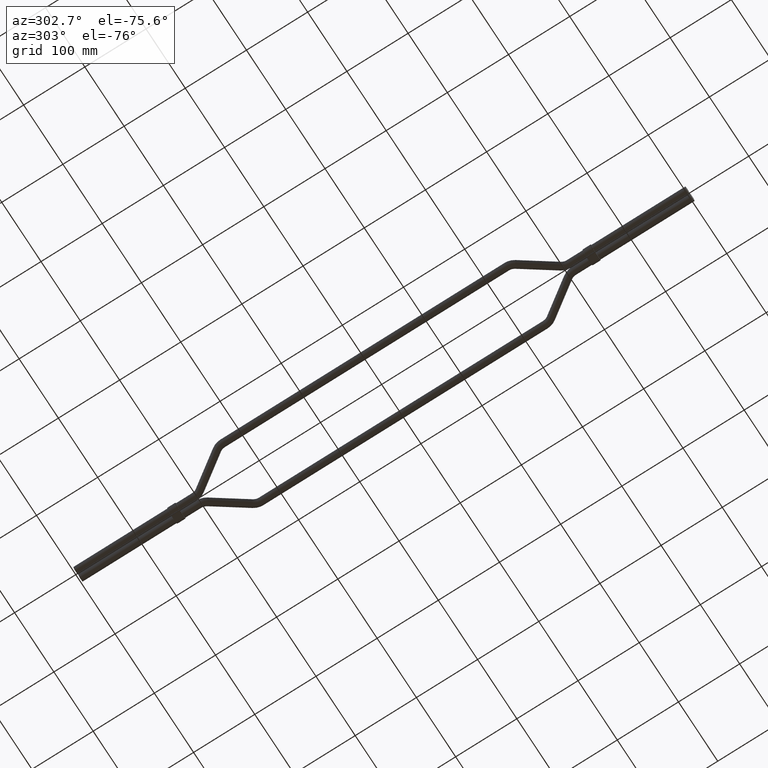
[diagram: clean part render]
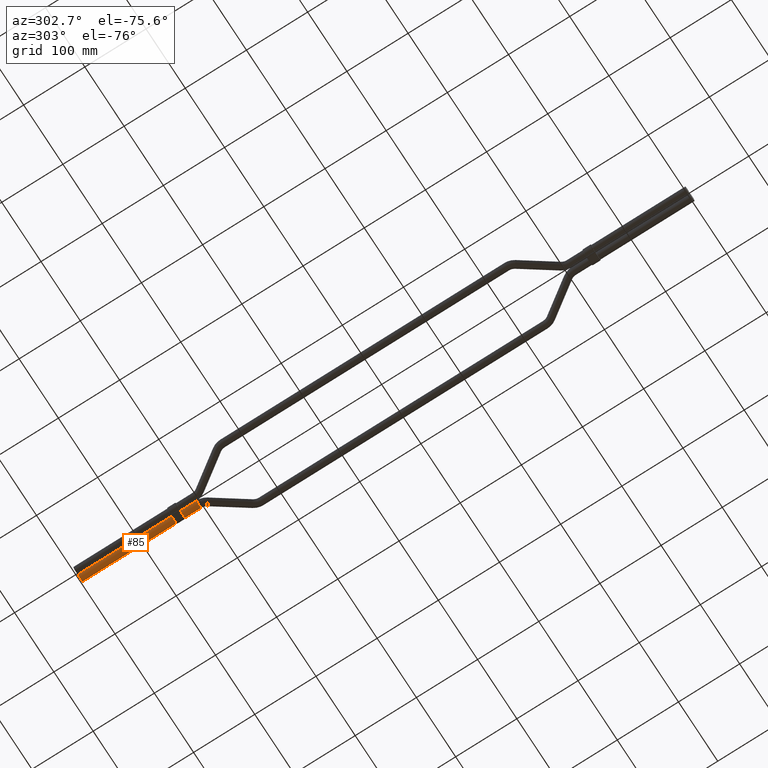
[diagram: same view with one face highlighted and labeled with its STEP entity id]
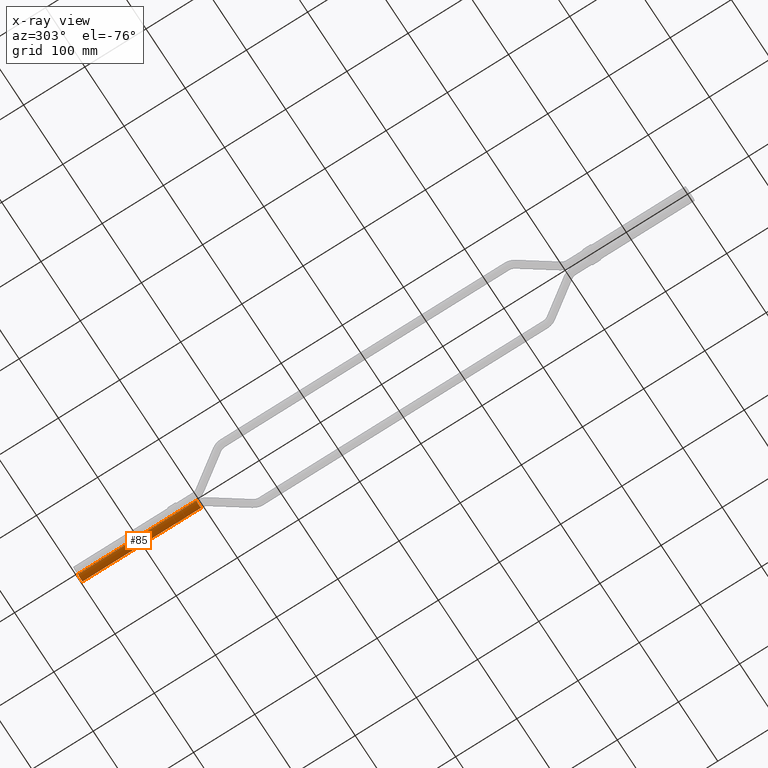
[diagram: x-ray of the same camera — body ghosted, the highlighted face saturated]
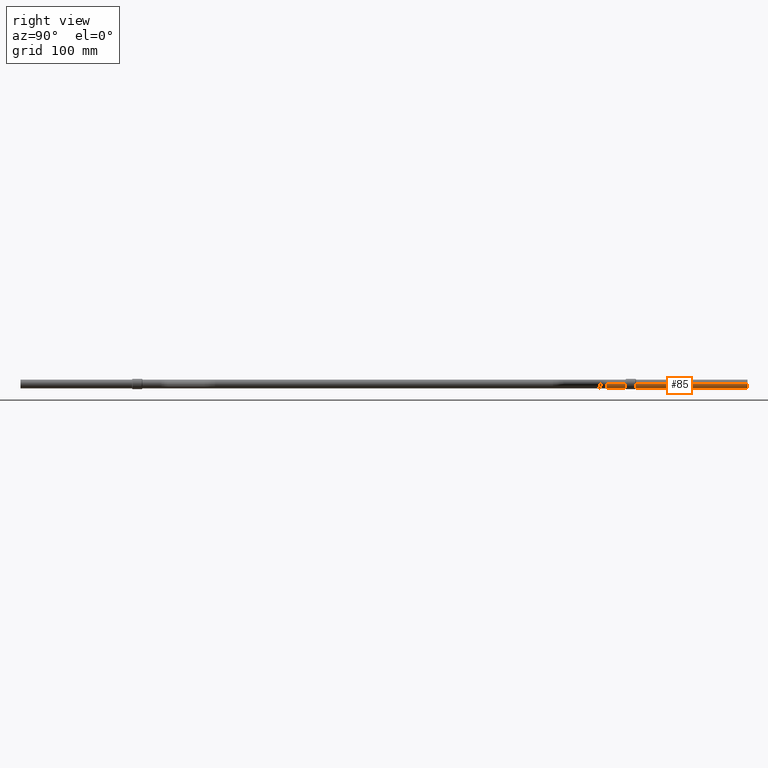
[diagram: same view with one face highlighted and labeled with its STEP entity id]
A machine part, auxiliary view. The second image highlights one B-rep face of the part: STEP entity #85.
The next image is the same camera in x-ray: the body ghosted, the highlighted face saturated — about 0% of this face is hidden behind the body in this view.
A second angle (right view) of the same face is appended — the face is thin or edge-on in the first view.
In plain terms, the highlighted cylindrical surface (edge-blend (fillet) strip) has radius 6 mm, axis along (-0, 1, 0).
Its self-contained STEP definition (entity closure, byte-faithful):
#85 = ADVANCED_FACE ( 'NONE', ( #422 ), #1677, .T. ) ;
#165 = VERTEX_POINT ( 'NONE', #3075 ) ;
#422 = FACE_OUTER_BOUND ( 'NONE', #1242, .T. ) ;
#423 = LINE ( 'NONE', #3882, #5716 ) ;
#1038 = VERTEX_POINT ( 'NONE', #1237 ) ;
#1237 = CARTESIAN_POINT ( 'NONE',  ( 18.00000000000002800, 1000.000000000000000, 7.347880794884123700E-016 ) ) ;
#1242 = EDGE_LOOP ( 'NONE', ( #7325, #7291, #2412, #6785 ) ) ;
#1526 = CARTESIAN_POINT ( 'NONE',  ( 6.000000000000024900, 1000.000000000000000, 0.0000000000000000000 ) ) ;
#1677 = CYLINDRICAL_SURFACE ( 'NONE', #5509, 6.000000000000002700 ) ;
#2101 = VERTEX_POINT ( 'NONE', #1526 ) ;
#2301 = AXIS2_PLACEMENT_3D ( 'NONE', #2306, #6493, #2932 ) ;
#2306 = CARTESIAN_POINT ( 'NONE',  ( 12.00000000000002800, 1000.000000000000000, 0.0000000000000000000 ) ) ;
#2412 = ORIENTED_EDGE ( 'NONE', *, *, #5067, .T. ) ;
#2457 = CARTESIAN_POINT ( 'NONE',  ( 18.00000000000007100, 806.3059757799999300, 7.347880794884145400E-016 ) ) ;
#2586 = DIRECTION ( 'NONE',  ( -4.218847493575594900E-015, 1.000000000000000000, 0.0000000000000000000 ) ) ;
#2671 = CIRCLE ( 'NONE', #6915, 6.000000000000002700 ) ;
#2932 = DIRECTION ( 'NONE',  ( 0.0000000000000000000, 0.0000000000000000000, 1.000000000000000000 ) ) ;
#3075 = CARTESIAN_POINT ( 'NONE',  ( 6.000000000000063100, 806.3059757799999300, 0.0000000000000000000 ) ) ;
#3084 = CIRCLE ( 'NONE', #2301, 6.000000000000002700 ) ;
#3175 = VECTOR ( 'NONE', #4329, 1000.000000000000000 ) ;
#3700 = EDGE_CURVE ( 'NONE', #7135, #165, #2671, .T. ) ;
#3882 = CARTESIAN_POINT ( 'NONE',  ( 6.000000000000063100, 806.3059757799999300, 0.0000000000000000000 ) ) ;
#4329 = DIRECTION ( 'NONE',  ( -1.970319767229510100E-016, 1.000000000000000000, 0.0000000000000000000 ) ) ;
#4525 = DIRECTION ( 'NONE',  ( -1.970319767229510100E-016, 1.000000000000000000, 0.0000000000000000000 ) ) ;
#4819 = LINE ( 'NONE', #7166, #3175 ) ;
#5067 = EDGE_CURVE ( 'NONE', #165, #2101, #423, .T. ) ;
#5410 = DIRECTION ( 'NONE',  ( -1.970319767229510100E-016, 1.000000000000000000, 0.0000000000000000000 ) ) ;
#5481 = CARTESIAN_POINT ( 'NONE',  ( 12.00000000000006600, 806.3059757799999300, 0.0000000000000000000 ) ) ;
#5507 = DIRECTION ( 'NONE',  ( -1.000000000000000000, 0.0000000000000000000, 0.0000000000000000000 ) ) ;
#5509 = AXIS2_PLACEMENT_3D ( 'NONE', #5481, #5410, #5507 ) ;
#5716 = VECTOR ( 'NONE', #4525, 1000.000000000000000 ) ;
#6205 = CARTESIAN_POINT ( 'NONE',  ( 12.00000000000006600, 806.3059757799999300, 0.0000000000000000000 ) ) ;
#6493 = DIRECTION ( 'NONE',  ( -4.218847493575594900E-015, 1.000000000000000000, 0.0000000000000000000 ) ) ;
#6726 = DIRECTION ( 'NONE',  ( 0.0000000000000000000, 0.0000000000000000000, 1.000000000000000000 ) ) ;
#6785 = ORIENTED_EDGE ( 'NONE', *, *, #7408, .F. ) ;
#6915 = AXIS2_PLACEMENT_3D ( 'NONE', #6205, #2586, #6726 ) ;
#7135 = VERTEX_POINT ( 'NONE', #2457 ) ;
#7140 = EDGE_CURVE ( 'NONE', #7135, #1038, #4819, .T. ) ;
#7166 = CARTESIAN_POINT ( 'NONE',  ( 18.00000000000006800, 806.3059757799999300, 7.347880794884122700E-016 ) ) ;
#7291 = ORIENTED_EDGE ( 'NONE', *, *, #3700, .T. ) ;
#7325 = ORIENTED_EDGE ( 'NONE', *, *, #7140, .F. ) ;
#7408 = EDGE_CURVE ( 'NONE', #1038, #2101, #3084, .T. ) ;